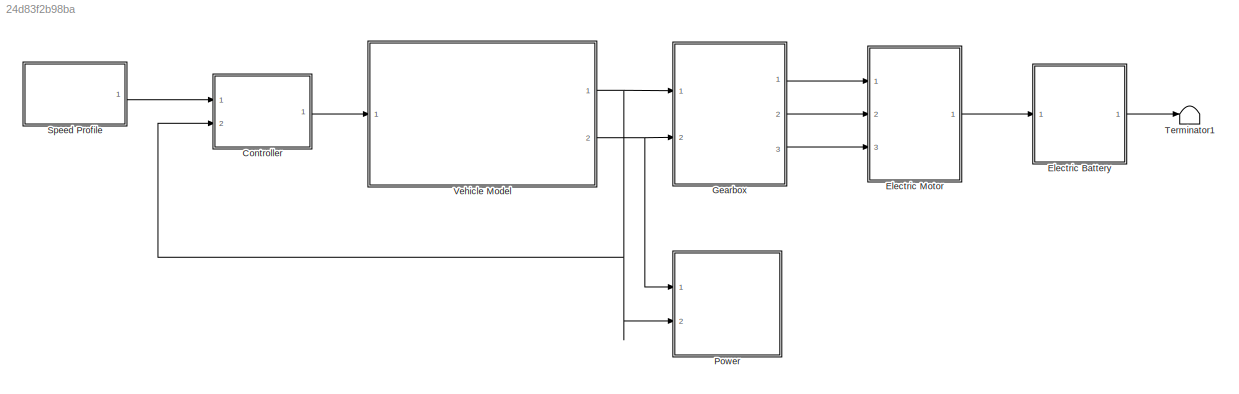
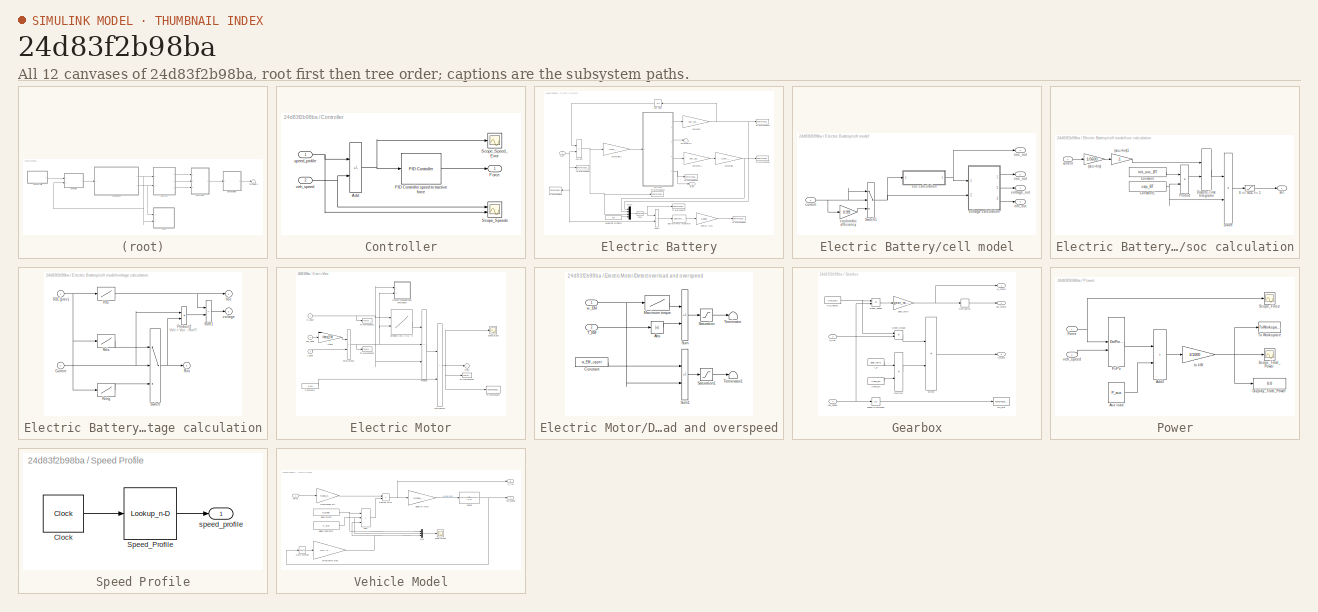
[diagram: thumbnail index - all 12 canvases of the model, root first then tree order]
MODEL slx_24d83f2b98ba
KIND model
CONFIG AbsTol = auto
CONFIG EnableMultiTasking = off
CONFIG FixedStep = auto
CONFIG MaxStep = 0.01
CONFIG MinStep = auto
CONFIG RelTol = 1e-3
CONFIG SampleTimeConstraint = Unconstrained
CONFIG SolverName = VariableStepAuto
CONFIG StartTime = 0
CONFIG StopTime = 1923
BLOCK [SubSystem] Controller
  Ports = [2, 1]
  RequestExecContextInheritance = off
BLOCK [Sum] Controller/Add
  IconShape = rectangular
  Inputs = +-
  Ports = [2, 1]
BLOCK [Outport] Controller/Force
  VectorParamsAs1DForOutWhenUnconnected = off
BLOCK [Reference] Controller/PID Controller speed to tractive force  REF=slpidlib/PID Controller
  Ports = [1, 1]
  SourceBlock = slpidlib/PID Controller
  SourceProductBaseCode = SL
  SourceType = PID 1dof
BLOCK [Scope] Controller/Scope_Speed_Error 
  Floating = off
  NumInputPorts = 1
  Ports = [1]
  ScopeSpecificationString = Simulink.scopes.TimeScopeBlockCfg('CurrentConfiguration', extmgr.ConfigurationSet(extmgr.Configuration('Core','General UI',true,'FigureColor',[1 1 1]),extmgr.Configuration('Core','Source UI',true),extmgr.Configuration('Sources','WiredSimulink',true,'DataLoggingVariableName','ScopeData3'),extmgr.Configuration('Visuals','Time Domain',true,'SerializedDisplays',{struct('MinYLimReal','-1.59483','MaxYLi...<+1631ch>
BLOCK [Scope] Controller/Scope_Speeds
  Floating = off
  NumInputPorts = 2
  Ports = [2]
  ScopeSpecificationString = Simulink.scopes.TimeScopeBlockCfg('CurrentConfiguration', extmgr.ConfigurationSet(extmgr.Configuration('Core','General UI',true,'FigureColor',[1 1 1]),extmgr.Configuration('Core','Source UI',true),extmgr.Configuration('Sources','WiredSimulink',true,'DataLoggingVariableName','ScopeData1'),extmgr.Configuration('Visuals','Time Domain',true,'SerializedDisplays',{struct('MinYLimReal','-2.87469','MaxYLi...<+1701ch>
BLOCK [Inport] Controller/speed_profile
BLOCK [Inport] Controller/veh_speed
  Port = 2
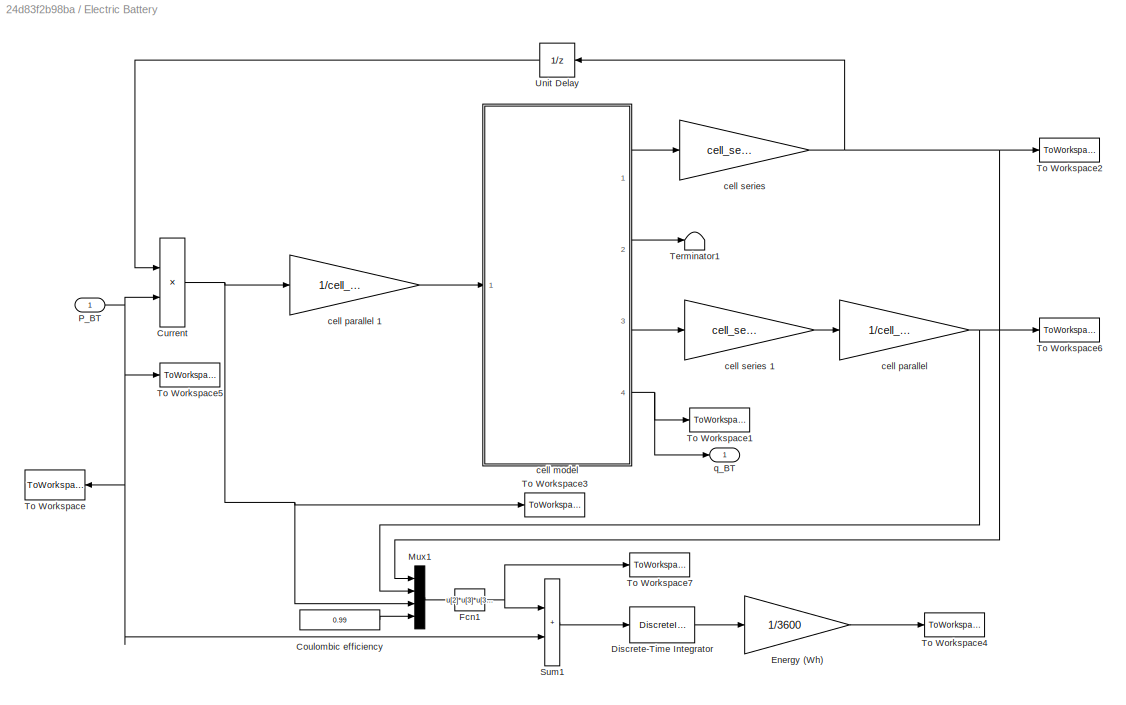
BLOCK [SubSystem] Electric Battery
  AncestorBlock = qss_tb_library_aalto/Energy Buffer/Battery v3
  Ports = [1, 1]
  RequestExecContextInheritance = off
  Tag = battery
BLOCK [Constant] Electric Battery/Coulombic efficiency
  Value = 0.99
BLOCK [Product] Electric Battery/Current
  Inputs = /*
  Ports = [2, 1]
  RndMeth = Zero
BLOCK [DiscreteIntegrator] Electric Battery/Discrete-Time Integrator
  ICPrevOutput = DiscIntNeverNeededParam
  ICPrevScaledInput = DiscIntNeverNeededParam
  Ports = [1, 1]
BLOCK [Gain] Electric Battery/Energy (Wh)
  Gain = 1/3600
BLOCK [Fcn] Electric Battery/Fcn1
  Expr = u[2]*u[3]*u[3]-u[1]*u[3]*(1-u(4))*(u[3]<0)
BLOCK [Mux] Electric Battery/Mux1
  DisplayOption = bar
  Ports = [4, 1]
BLOCK [Inport] Electric Battery/P_BT
BLOCK [Sum] Electric Battery/Sum1
  IconShape = rectangular
  InputSameDT = on
  OutDataTypeStr = Inherit: Same as first input
  Ports = [2, 1]
  SaturateOnIntegerOverflow = on
BLOCK [Terminator] Electric Battery/Terminator1
BLOCK [ToWorkspace] Electric Battery/To Workspace
  FixptAsFi = on
  MaxDataPoints = inf
  Ports = [1]
  SampleTime = -1
  SaveFormat = Timeseries
  VariableName = p_BT
BLOCK [ToWorkspace] Electric Battery/To Workspace1
  MaxDataPoints = inf
  Ports = [1]
  SampleTime = -1
  VariableName = q_BT
BLOCK [ToWorkspace] Electric Battery/To Workspace2
  MaxDataPoints = inf
  Ports = [1]
  SampleTime = -1
  VariableName = U_BT
BLOCK [ToWorkspace] Electric Battery/To Workspace3
  MaxDataPoints = inf
  Ports = [1]
  SampleTime = -1
  VariableName = I_BT
BLOCK [ToWorkspace] Electric Battery/To Workspace4
  MaxDataPoints = inf
  Ports = [1]
  SampleTime = -1
  VariableName = E_BT
BLOCK [ToWorkspace] Electric Battery/To Workspace5
  MaxDataPoints = inf
  Ports = [1]
  SampleTime = -1
  VariableName = P_BT
BLOCK [ToWorkspace] Electric Battery/To Workspace6
  MaxDataPoints = inf
  Ports = [1]
  SampleTime = -1
  VariableName = R_BT
BLOCK [ToWorkspace] Electric Battery/To Workspace7
  MaxDataPoints = inf
  Ports = [1]
  SampleTime = -1
  VariableName = L_BT
BLOCK [UnitDelay] Electric Battery/Unit Delay
  HasFrameUpgradeWarning = on
  InitialCondition = cell_series_BT*max(voc_map_BT)
  SampleTime = -1
BLOCK [SubSystem] Electric Battery/cell model
  Ports = [1, 4]
  RequestExecContextInheritance = off
BLOCK [Switch] Electric Battery/cell model/Switch1
BLOCK [Gain] Electric Battery/cell model/coulombic efficiency
  Gain = 0.99
BLOCK [Inport] Electric Battery/cell model/current
BLOCK [Outport] Electric Battery/cell model/rint_out
  Port = 3
  VectorParamsAs1DForOutWhenUnconnected = off
BLOCK [SubSystem] Electric Battery/cell model/soc calculation
  Ports = [1, 1]
  RequestExecContextInheritance = off
BLOCK [Gain] Electric Battery/cell model/soc calculation/(sec->hrs)
  Gain = 1/3600
  OutDataTypeStr = Inherit: Same as input
  ParamDataTypeStr = Inherit: Same as input
  SaturateOnIntegerOverflow = on
BLOCK [Gain] Electric Battery/cell model/soc calculation/(sec->hrs)1
  Gain = -1
  OutDataTypeStr = Inherit: Same as input
  ParamDataTypeStr = Inherit: Same as input
  SaturateOnIntegerOverflow = on
BLOCK [Saturate] Electric Battery/cell model/soc calculation/0 <= SOC <= 1
  LowerLimit = 0
  UpperLimit = 1
BLOCK [Constant] Electric Battery/cell model/soc calculation/Constant
  Value = init_soc_BT
BLOCK [Constant] Electric Battery/cell model/soc calculation/Constant1
  Value = cap_BT
BLOCK [DiscreteIntegrator] Electric Battery/cell model/soc calculation/Discrete-Time Integrator
  ICPrevOutput = DiscIntNeverNeededParam
  ICPrevScaledInput = DiscIntNeverNeededParam
  InitialConditionSource = external
  Ports = [2, 1]
BLOCK [Product] Electric Battery/cell model/soc calculation/Divide
  Inputs = */
  Ports = [2, 1]
  RndMeth = Zero
BLOCK [Product] Electric Battery/cell model/soc calculation/Product
  Ports = [2, 1]
  RndMeth = Zero
BLOCK [Inport] Electric Battery/cell model/soc calculation/current
BLOCK [Outport] Electric Battery/cell model/soc calculation/soc
  VectorParamsAs1DForOutWhenUnconnected = off
BLOCK [Outport] Electric Battery/cell model/soc_out
  Port = 4
  VectorParamsAs1DForOutWhenUnconnected = off
BLOCK [Outport] Electric Battery/cell model/voc_out
  Port = 2
  VectorParamsAs1DForOutWhenUnconnected = off
BLOCK [SubSystem] Electric Battery/cell model/voltage calculation
  Ports = [2, 3]
  RequestExecContextInheritance = off
BLOCK [Inport] Electric Battery/cell model/voltage calculation/Current
  Port = 2
BLOCK [Product] Electric Battery/cell model/voltage calculation/Product2
  InputSameDT = on
  OutDataTypeStr = Inherit: Same as first input
  Ports = [2, 1]
  SaturateOnIntegerOverflow = on
BLOCK [Lookup] Electric Battery/cell model/voltage calculation/Rchg
  InputValues = soc_map_BT
  Table = rchg_map_BT
BLOCK [Lookup] Electric Battery/cell model/voltage calculation/Rdis
  InputValues = soc_map_BT
  Table = rdis_map_BT
BLOCK [Outport] Electric Battery/cell model/voltage calculation/Rint
  InitialOutput = 0
  Port = 3
  VectorParamsAs1DForOutWhenUnconnected = off
BLOCK [Inport] Electric Battery/cell model/voltage calculation/SOC (prev)
BLOCK [Sum] Electric Battery/cell model/voltage calculation/Sum1
  IconShape = rectangular
  InputSameDT = on
  Inputs = +-
  OutDataTypeStr = Inherit: Same as first input
  Ports = [2, 1]
  SaturateOnIntegerOverflow = on
BLOCK [Switch] Electric Battery/cell model/voltage calculation/Switch
BLOCK [Lookup] Electric Battery/cell model/voltage calculation/VOC
  InputValues = soc_map_BT
  Table = voc_map_BT
BLOCK [Outport] Electric Battery/cell model/voltage calculation/Voc
  InitialOutput = 0
  VectorParamsAs1DForOutWhenUnconnected = off
BLOCK [Outport] Electric Battery/cell model/voltage calculation/voltage
  InitialOutput = 0
  Port = 2
  VectorParamsAs1DForOutWhenUnconnected = off
BLOCK [Outport] Electric Battery/cell model/voltage_out
  VectorParamsAs1DForOutWhenUnconnected = off
BLOCK [Gain] Electric Battery/cell parallel
  Gain = 1/cell_parallel_BT
BLOCK [Gain] Electric Battery/cell parallel 1
  Gain = 1/cell_parallel_BT
BLOCK [Gain] Electric Battery/cell series 
  Gain = cell_series_BT
BLOCK [Gain] Electric Battery/cell series 1
  Gain = cell_series_BT
BLOCK [Outport] Electric Battery/q_BT
  InitialOutput = 0
  VectorParamsAs1DForOutWhenUnconnected = off
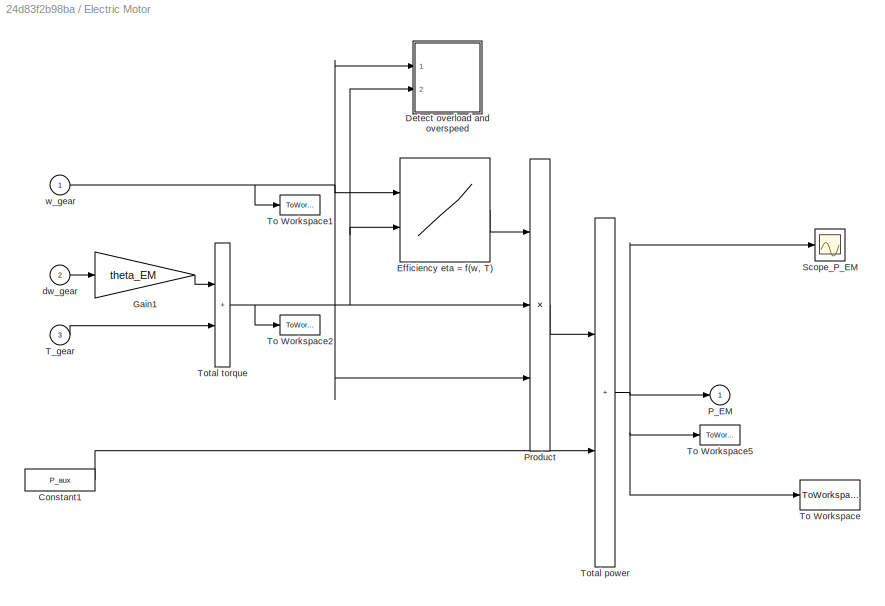
BLOCK [SubSystem] Electric Motor
  AncestorBlock = qss_tb_library_aalto/Energy Converter/Electric Motor v2
  Ports = [3, 1]
  RequestExecContextInheritance = off
BLOCK [Constant] Electric Motor/Constant1
  Value = P_aux
BLOCK [SubSystem] Electric Motor/Detect overload and overspeed
  Ports = [2]
  RequestExecContextInheritance = off
BLOCK [Abs] Electric Motor/Detect overload and overspeed/Abs
BLOCK [Constant] Electric Motor/Detect overload and overspeed/Constant
  Value = w_EM_upper
BLOCK [Lookup] Electric Motor/Detect overload and overspeed/Maximum torque
  InputValues = w_EM_row
  Table = T_EM_max*over_factor
BLOCK [Saturate] Electric Motor/Detect overload and overspeed/Saturation
  LowerLimit = -inf
  UpperLimit = 0
BLOCK [Saturate] Electric Motor/Detect overload and overspeed/Saturation1
  LowerLimit = -inf
  UpperLimit = 0
BLOCK [Sum] Electric Motor/Detect overload and overspeed/Sum
  IconShape = rectangular
  InputSameDT = on
  Inputs = +-
  OutDataTypeStr = Inherit: Same as first input
  Ports = [2, 1]
  SaturateOnIntegerOverflow = on
BLOCK [Sum] Electric Motor/Detect overload and overspeed/Sum1
  IconShape = rectangular
  InputSameDT = on
  Inputs = +-
  OutDataTypeStr = Inherit: Same as first input
  Ports = [2, 1]
  SaturateOnIntegerOverflow = on
BLOCK [Inport] Electric Motor/Detect overload and overspeed/T_EM
  Port = 2
BLOCK [Terminator] Electric Motor/Detect overload and overspeed/Terminator
BLOCK [Terminator] Electric Motor/Detect overload and overspeed/Terminator1
BLOCK [Inport] Electric Motor/Detect overload and overspeed/w_EM
BLOCK [Lookup2D] Electric Motor/Efficiency eta = f(w, T)
  ColumnIndex = T_EM_col
  InputSameDT = off
  RowIndex = w_EM_row
  SaturateOnIntegerOverflow = off
  Table = eta_EM_map
BLOCK [Gain] Electric Motor/Gain1
  Gain = theta_EM
  OutDataTypeStr = Inherit: Same as input
  ParamDataTypeStr = Inherit: Same as input
  SaturateOnIntegerOverflow = on
BLOCK [Outport] Electric Motor/P_EM
  InitialOutput = 0
  VectorParamsAs1DForOutWhenUnconnected = off
BLOCK [Product] Electric Motor/Product
  InputSameDT = on
  Inputs = 3
  OutDataTypeStr = Inherit: Same as first input
  Ports = [3, 1]
  RndMeth = Zero
  SaturateOnIntegerOverflow = on
BLOCK [Scope] Electric Motor/Scope_P_EM
  Floating = off
  NumInputPorts = 1
  Ports = [1]
  ScopeSpecificationString = Simulink.scopes.TimeScopeBlockCfg('CurrentConfiguration', extmgr.ConfigurationSet(extmgr.Configuration('Core','General UI',true,'FigureColor',[1 1 1]),extmgr.Configuration('Core','Source UI',true),extmgr.Configuration('Sources','WiredSimulink',true,'DataLoggingVariableName','ScopeData1'),extmgr.Configuration('Visuals','Time Domain',true,'SerializedDisplays',{struct('MinYLimReal','-164422.10772','M...<+1553ch>
BLOCK [Inport] Electric Motor/T_gear
  Port = 3
BLOCK [ToWorkspace] Electric Motor/To Workspace
  FixptAsFi = on
  MaxDataPoints = inf
  Ports = [1]
  SampleTime = -1
  SaveFormat = Timeseries
  VariableName = p_EM
BLOCK [ToWorkspace] Electric Motor/To Workspace1
  MaxDataPoints = inf
  NameLocation = top
  Ports = [1]
  SampleTime = -1
  VariableName = w_EM
BLOCK [ToWorkspace] Electric Motor/To Workspace2
  MaxDataPoints = inf
  NameLocation = top
  Ports = [1]
  SampleTime = -1
  VariableName = T_EM
BLOCK [ToWorkspace] Electric Motor/To Workspace5
  MaxDataPoints = inf
  NameLocation = top
  Ports = [1]
  SampleTime = -1
  VariableName = P_EM
BLOCK [Sum] Electric Motor/Total power
  IconShape = rectangular
  InputSameDT = on
  OutDataTypeStr = Inherit: Same as first input
  Ports = [2, 1]
  SaturateOnIntegerOverflow = on
BLOCK [Sum] Electric Motor/Total torque
  IconShape = rectangular
  InputSameDT = on
  OutDataTypeStr = Inherit: Same as first input
  Ports = [2, 1]
  SaturateOnIntegerOverflow = on
BLOCK [Inport] Electric Motor/dw_gear
  Port = 2
BLOCK [Inport] Electric Motor/w_gear
BLOCK [SubSystem] Gearbox
  Ports = [2, 3]
  RequestExecContextInheritance = off
BLOCK [Derivative] Gearbox/Derivative
BLOCK [Inport] Gearbox/F_trac
  Port = 2
BLOCK [Outport] Gearbox/T_motor
  Port = 3
  VectorParamsAs1DForOutWhenUnconnected = off
BLOCK [Product] Gearbox/divide
  Inputs = */
  Ports = [2, 1]
BLOCK [Outport] Gearbox/dw_motor
  Port = 2
  VectorParamsAs1DForOutWhenUnconnected = off
BLOCK [Gain] Gearbox/gear_ratio
  Gain = gear_ratio
BLOCK [Constant] Gearbox/i_g
  Value = gear_ratio
BLOCK [Product] Gearbox/multiply
  Inputs = **
  Ports = [2, 1]
BLOCK [Integrator] Gearbox/speed to distance
  Ports = [1, 1]
BLOCK [Constant] Gearbox/trans_eff
  Value = trans_eff
BLOCK [Constant] Gearbox/tyre_radius
  Value = tyre_dyn_r
BLOCK [Inport] Gearbox/veh_speed
BLOCK [Outport] Gearbox/w_motor
  VectorParamsAs1DForOutWhenUnconnected = off
BLOCK [Product] Gearbox/wheel_speed
  Inputs = /*
  Ports = [2, 1]
BLOCK [Product] Gearbox/wheel_torque
  Inputs = **
  Ports = [2, 1]
BLOCK [ToWorkspace] Gearbox/ws_xtot
  FixptAsFi = on
  MaxDataPoints = inf
  Ports = [1]
  SampleTime = -1
  SaveFormat = Timeseries
  VariableName = xtot
BLOCK [SubSystem] Power
  Ports = [2]
  RequestExecContextInheritance = off
BLOCK [Sum] Power/Add3
  IconShape = rectangular
  Ports = [2, 1]
BLOCK [Constant] Power/Aux load
  Value = P_aux
BLOCK [Display] Power/Display_Total_Power
  Decimation = 1
  Ports = [1]
BLOCK [Inport] Power/Force
BLOCK [DotProduct] Power/P=F*v
  OutDataTypeStr = Inherit: Inherit via internal rule
BLOCK [Scope] Power/Scope_Force
  Floating = off
  NumInputPorts = 1
  Ports = [1]
  ScopeSpecificationString = Simulink.scopes.TimeScopeBlockCfg('CurrentConfiguration', extmgr.ConfigurationSet(extmgr.Configuration('Core','General UI',true,'FigureColor',[1 1 1]),extmgr.Configuration('Core','Source UI',true),extmgr.Configuration('Sources','WiredSimulink',true,'DataLoggingVariableName','ScopeData2'),extmgr.Configuration('Visuals','Time Domain',true,'SerializedDisplays',{struct('MinYLimReal','-46656.59259','Ma...<+1617ch>
BLOCK [Scope] Power/Scope_Total_Power
  Floating = off
  NumInputPorts = 1
  Ports = [1]
  ScopeSpecificationString = Simulink.scopes.TimeScopeBlockCfg('CurrentConfiguration', extmgr.ConfigurationSet(extmgr.Configuration('Core','General UI',true,'FigureColor',[1 1 1]),extmgr.Configuration('Core','Source UI',true),extmgr.Configuration('Sources','WiredSimulink',true),extmgr.Configuration('Visuals','Time Domain',true,'SerializedDisplays',{struct('MinYLimReal','-268.22361','MaxYLimReal','267.96678','YLabelReal','','M...<+1569ch>
BLOCK [ToWorkspace] Power/To Workspace
  FixptAsFi = on
  MaxDataPoints = inf
  Ports = [1]
  SampleTime = -1
  SaveFormat = Timeseries
  VariableName = Total_Power
BLOCK [Gain] Power/to kW
  Gain = 1/1000
BLOCK [Inport] Power/veh_speed
  Port = 2
BLOCK [SubSystem] Speed Profile
  Ports = [0, 1]
  RequestExecContextInheritance = off
BLOCK [Clock] Speed Profile/Clock
BLOCK [Lookup_n-D] Speed Profile/Speed_Profile
  BreakpointsForDimension1 = [0:1923]
  BreakpointsSpecification = Even spacing
  InputPortMap = u0
  InternalRulePriority = Speed
  NumberOfTableDimensions = 1
  Ports = [1, 1]
  RndMeth = Simplest
  Table = speed_m_s
BLOCK [Outport] Speed Profile/speed_profile
  VectorParamsAs1DForOutWhenUnconnected = off
BLOCK [Terminator] Terminator1
BLOCK [SubSystem] Vehicle Model
  Ports = [1, 2]
  RequestExecContextInheritance = off
BLOCK [Sum] Vehicle Model/Add1
  IconShape = rectangular
  Inputs = +++
  Ports = [3, 1]
BLOCK [Gain] Vehicle Model/Aerodynamic drag
  Gain = 0.5 * C_D * RHO * A_CS
BLOCK [Gain] Vehicle Model/Divide by mass 
  Gain = 1/mass_total
BLOCK [Scope] Vehicle Model/Drag forces
  Floating = off
  NumInputPorts = 1
  Ports = [1]
  ScopeSpecificationString = Simulink.scopes.TimeScopeBlockCfg('CurrentConfiguration', extmgr.ConfigurationSet(extmgr.Configuration('Core','General UI',true),extmgr.Configuration('Core','Source UI',true),extmgr.Configuration('Sources','WiredSimulink',true,'DataLoggingVariableName','ScopeData2'),extmgr.Configuration('Visuals','Time Domain',true,'SerializedDisplays',{struct('MinYLimReal','-329.875','MaxYLimReal','2968.875','YLa...<+1469ch>
BLOCK [Outport] Vehicle Model/F_trac
  Port = 2
  VectorParamsAs1DForOutWhenUnconnected = off
BLOCK [Inport] Vehicle Model/Force
BLOCK [Math] Vehicle Model/Math Function
  Operator = square
  Ports = [1, 1]
  SignedPower = on
BLOCK [Mux] Vehicle Model/Mux
  DisplayOption = bar
  Inputs = 3
  Ports = [3, 1]
BLOCK [Constant] Vehicle Model/Rolling resistance
  Value = F_RR
BLOCK [Constant] Vehicle Model/Slope effect
  Value = F_slope
BLOCK [TransferFcn] Vehicle Model/Speed
  Denominator = [1 0]
BLOCK [Sum] Vehicle Model/Tractive Force
  IconShape = rectangular
  Inputs = +-
  Ports = [2, 1]
BLOCK [Gain] Vehicle Model/Transmission eff.
  Gain = trans_eff
BLOCK [Outport] Vehicle Model/veh_speed
  VectorParamsAs1DForOutWhenUnconnected = off
ANNOTATION Electric Battery/cell model/voltage calculation: Volt = Voc - Rint*I
NET Controller/Add:1 -> Controller/PID Controller speed to tractive force:1, Controller/Scope_Speed_Error :1
LINE Controller/PID Controller speed to tractive force:1 -> Controller/Force:1
NET Controller/speed_profile:1 -> Controller/Add:1, Controller/Scope_Speeds:2
NET Controller/veh_speed:1 -> Controller/Add:2, Controller/Scope_Speeds:1
LINE Controller:1 -> Vehicle Model:1
LINE Electric Battery:1 -> Terminator1:1
LINE Electric Motor:1 -> Electric Battery:1
LINE Gearbox/Derivative:1 -> Gearbox/dw_motor:1
LINE Gearbox/F_trac:1 -> Gearbox/wheel_torque:2
LINE Gearbox/divide:1 -> Gearbox/T_motor:1
NET Gearbox/gear_ratio:1 -> Gearbox/Derivative:1, Gearbox/w_motor:1
LINE Gearbox/i_g:1 -> Gearbox/multiply:1
LINE Gearbox/multiply:1 -> Gearbox/divide:2
LINE Gearbox/speed to distance:1 -> Gearbox/ws_xtot:1
LINE Gearbox/trans_eff:1 -> Gearbox/multiply:2
NET Gearbox/tyre_radius:1 -> Gearbox/wheel_speed:1, Gearbox/wheel_torque:1
NET Gearbox/veh_speed:1 -> Gearbox/speed to distance:1, Gearbox/wheel_speed:2
LINE Gearbox/wheel_speed:1 -> Gearbox/gear_ratio:1
LINE Gearbox/wheel_torque:1 -> Gearbox/divide:1
LINE Gearbox:1 -> Electric Motor:1
LINE Gearbox:2 -> Electric Motor:2
LINE Gearbox:3 -> Electric Motor:3
LINE Power/Add3:1 -> Power/to kW:1
LINE Power/Aux load:1 -> Power/Add3:2
NET Power/Force:1 -> Power/P=F*v:1, Power/Scope_Force:1
LINE Power/P=F*v:1 -> Power/Add3:1
NET Power/to kW:1 -> Power/Display_Total_Power:1, Power/Scope_Total_Power:1, Power/To Workspace:1
LINE Power/veh_speed:1 -> Power/P=F*v:2
LINE Speed Profile/Clock:1 -> Speed Profile/Speed_Profile:1
LINE Speed Profile/Speed_Profile:1 -> Speed Profile/speed_profile:1
LINE Speed Profile:1 -> Controller:1
LINE Vehicle Model/Add1:1 -> Vehicle Model/Tractive Force:2
NET Vehicle Model/Aerodynamic drag:1 -> Vehicle Model/Add1:3, Vehicle Model/Mux:3
LINE Vehicle Model/Divide by mass :1 -> Vehicle Model/Speed:1
LINE Vehicle Model/Force:1 -> Vehicle Model/Transmission eff.:1
LINE Vehicle Model/Math Function:1 -> Vehicle Model/Aerodynamic drag:1
LINE Vehicle Model/Mux:1 -> Vehicle Model/Drag forces:1
NET Vehicle Model/Rolling resistance:1 -> Vehicle Model/Add1:2, Vehicle Model/Mux:2
NET Vehicle Model/Slope effect:1 -> Vehicle Model/Add1:1, Vehicle Model/Mux:1
NET Vehicle Model/Speed:1 -> Vehicle Model/Math Function:1, Vehicle Model/veh_speed:1
NET Vehicle Model/Tractive Force:1 -> Vehicle Model/Divide by mass :1, Vehicle Model/F_trac:1
LINE Vehicle Model/Transmission eff.:1 -> Vehicle Model/Tractive Force:1
NET Vehicle Model:1 -> Controller:2, Gearbox:1, Power:2
NET Vehicle Model:2 -> Gearbox:2, Power:1
note: NET lines group one-source signal fan-out (src -> all destinations, sorted); 1:1 wires keep LINE
